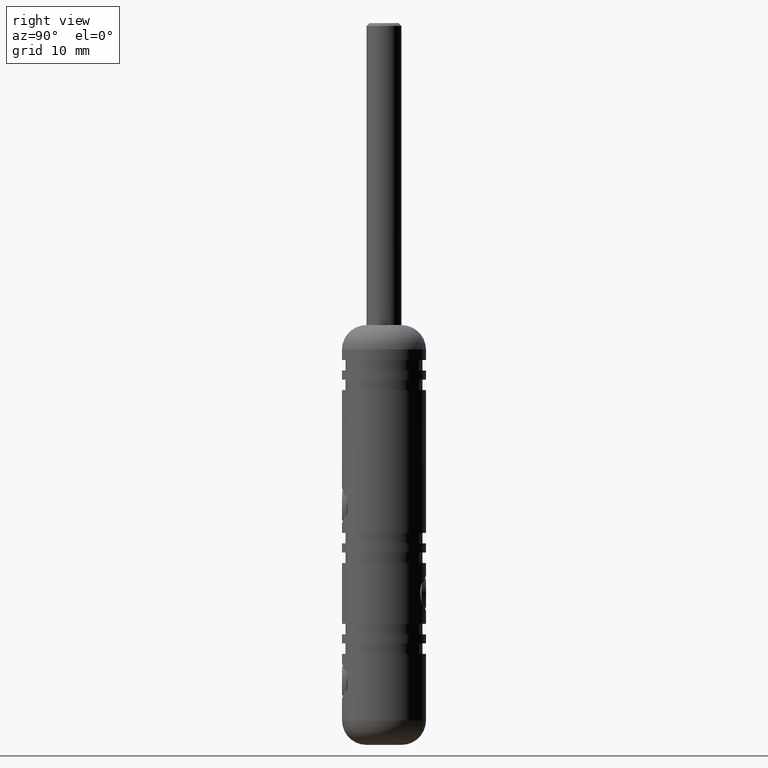
[diagram: clean part render]
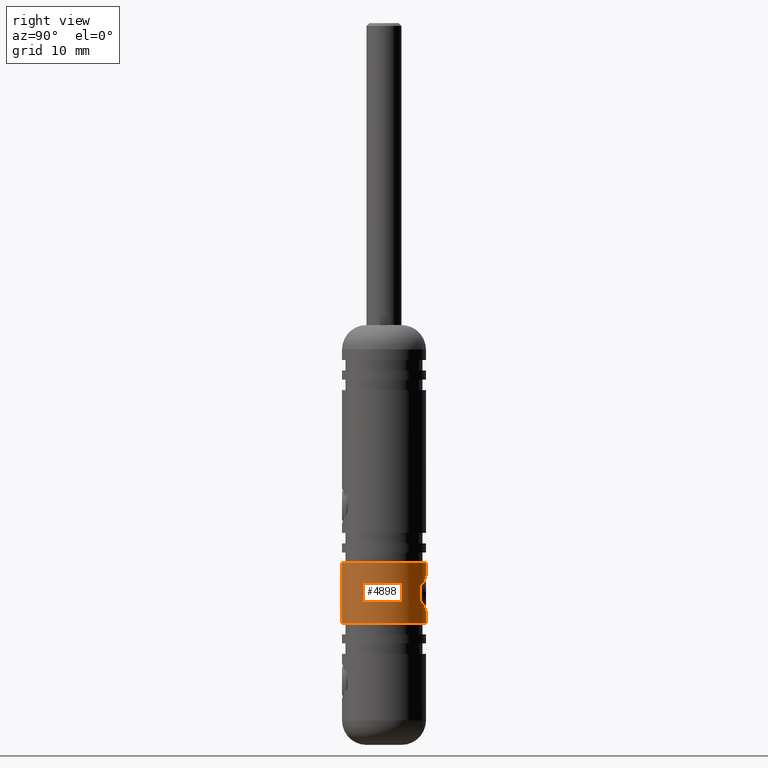
[diagram: same view with one face highlighted and labeled with its STEP entity id]
A machine part, right view. The second image highlights one B-rep face of the part: STEP entity #4898.
In plain terms, the highlighted cylindrical surface (partial cylindrical patch) has radius 6 mm, axis along (0, 0, 1).
Its self-contained STEP definition (entity closure, byte-faithful):
#24 = CIRCLE ( 'NONE', #6634, 5.999999999999980500 ) ;
#93 = CIRCLE ( 'NONE', #11725, 5.999999999999979600 ) ;
#397 = CARTESIAN_POINT ( 'NONE',  ( 7.347777944682092200E-016, 5.999999999999976900, -10.85000000000000100 ) ) ;
#455 = CARTESIAN_POINT ( 'NONE',  ( 0.8115992888655364500, 5.946860788343231600, -5.979642376573275800 ) ) ;
#515 = CARTESIAN_POINT ( 'NONE',  ( 2.166263312547636900, 5.596114381308978200, -9.608327122135955600 ) ) ;
#569 = DIRECTION ( 'NONE',  ( -0.0000000000000000000, 6.241551396031028600E-017, 1.000000000000000000 ) ) ;
#1262 = CARTESIAN_POINT ( 'NONE',  ( 0.0000000000000000000, 5.999999999999976000, -5.850000000000005000 ) ) ;
#1670 = CARTESIAN_POINT ( 'NONE',  ( 1.260060590211527400, 5.867820848286483800, -10.51528046352898600 ) ) ;
#1725 = CARTESIAN_POINT ( 'NONE',  ( 0.8121109664669670100, 5.946762593001415600, -10.72010000276761100 ) ) ;
#1778 = CARTESIAN_POINT ( 'NONE',  ( 0.3316893159624707000, 5.993028201139764200, -10.83339933881467900 ) ) ;
#1833 = CARTESIAN_POINT ( 'NONE',  ( 2.244635986508915200, 5.564731696078985700, -9.462763928491114000 ) ) ;
#2897 = CARTESIAN_POINT ( 'NONE',  ( 1.986351737220498200, 5.662472930091954700, -9.876594465348913900 ) ) ;
#3007 = CARTESIAN_POINT ( 'NONE',  ( 2.370252263024601000, 5.512398186896852800, -9.161503839860646500 ) ) ;
#3067 = CARTESIAN_POINT ( 'NONE',  ( 2.499958286588244100, 5.454375176628026600, -8.515426999768903800 ) ) ;
#3328 = VERTEX_POINT ( 'NONE', #8015 ) ;
#3695 = FACE_OUTER_BOUND ( 'NONE', #12815, .T. ) ;
#4228 = CARTESIAN_POINT ( 'NONE',  ( 2.483167037994901800, 5.462156378440682600, -8.683100656855362600 ) ) ;
#4392 = CARTESIAN_POINT ( 'NONE',  ( 1.259538159729436600, 5.867927242172487300, -6.184439642035616900 ) ) ;
#4598 = DIRECTION ( 'NONE',  ( -0.0000000000000000000, 6.241551396031028600E-017, 1.000000000000000000 ) ) ;
#4898 = ADVANCED_FACE ( 'NONE', ( #3695 ), #9460, .T. ) ;
#4956 = VERTEX_POINT ( 'NONE', #1262 ) ;
#5624 = CARTESIAN_POINT ( 'NONE',  ( 1.985776905186849000, 5.662680758676469100, -6.822596471327101700 ) ) ;
#5845 = VERTEX_POINT ( 'NONE', #14756 ) ;
#5997 = CARTESIAN_POINT ( 'NONE',  ( 0.0000000000000000000, -2.665142446105249500E-015, -12.70000000000000300 ) ) ;
#6246 = EDGE_CURVE ( 'NONE', #4956, #7862, #12820, .T. ) ;
#6249 = EDGE_CURVE ( 'NONE', #7206, #7862, #93, .T. ) ;
#6323 = DIRECTION ( 'NONE',  ( 0.0000000000000000000, -1.000000000000000000, 0.0000000000000000000 ) ) ;
#6468 = LINE ( 'NONE', #14337, #7054 ) ;
#6516 = CARTESIAN_POINT ( 'NONE',  ( 0.0000000000000000000, -5.999999999999983100, -12.70000000000000300 ) ) ;
#6558 = EDGE_CURVE ( 'NONE', #10032, #7206, #6468, .T. ) ;
#6634 = AXIS2_PLACEMENT_3D ( 'NONE', #5997, #16220, #9055 ) ;
#6652 = B_SPLINE_CURVE_WITH_KNOTS ( 'NONE', 3,
 ( #397, #6842, #1778, #14580, #1725, #8144, #1670, #6942, #9445, #10601, #2897, #515, #1833, #3007, #10655, #4228, #3067, #14521, #10550, #8045, #11891, #5624, #11999, #6890, #10711, #4392, #11944, #455, #13290, #7986, #15781, #8202 ),
 .UNSPECIFIED., .F., .F.,
 ( 4, 2, 2, 2, 2, 2, 2, 2, 2, 2, 2, 2, 2, 2, 2, 4 ),
 ( 0.007907415464232892700, 0.008401230926880311200, 0.008895046389527729700, 0.009388861852175150000, 0.009882677314822568500, 0.01037649277746998700, 0.01087030824011740700, 0.01136412370276482600, 0.01185793916541224400, 0.01284557009070707800, 0.01333938555335449300, 0.01383320101600191000, 0.01432701647864932600, 0.01482083194129674200, 0.01531464740394415800, 0.01580846286659157500 ),
 .UNSPECIFIED. ) ;
#6842 = CARTESIAN_POINT ( 'NONE',  ( 0.1646041220039581900, 5.999999999999977800, -10.84999999999999800 ) ) ;
#6890 = CARTESIAN_POINT ( 'NONE',  ( 1.654032730495418300, 5.768759283832320500, -6.468374034229552400 ) ) ;
#6942 = CARTESIAN_POINT ( 'NONE',  ( 1.528716671483799000, 5.803628135650771300, -10.33474620923483100 ) ) ;
#7054 = VECTOR ( 'NONE', #13110, 1000.000000000000000 ) ;
#7206 = VERTEX_POINT ( 'NONE', #16128 ) ;
#7575 = DIRECTION ( 'NONE',  ( -0.0000000000000000000, 6.241551396031028600E-017, 1.000000000000000000 ) ) ;
#7862 = VERTEX_POINT ( 'NONE', #13473 ) ;
#7986 = CARTESIAN_POINT ( 'NONE',  ( 0.3334989678857768800, 5.992895555958760700, -5.866922929660764100 ) ) ;
#8015 = CARTESIAN_POINT ( 'NONE',  ( 7.347777944682092200E-016, 5.999999999999976900, -10.85000000000000100 ) ) ;
#8045 = CARTESIAN_POINT ( 'NONE',  ( 2.244716869438427000, 5.564698557009159600, -7.237411570348672100 ) ) ;
#8099 = DIRECTION ( 'NONE',  ( 0.0000000000000000000, -1.000000000000000000, 0.0000000000000000000 ) ) ;
#8144 = CARTESIAN_POINT ( 'NONE',  ( 1.114788231091695200, 5.897521238554067400, -10.59369014010277400 ) ) ;
#8202 = CARTESIAN_POINT ( 'NONE',  ( 0.0000000000000000000, 5.999999999999976000, -5.850000000000005000 ) ) ;
#8305 = EDGE_CURVE ( 'NONE', #3328, #4956, #6652, .T. ) ;
#8805 = ORIENTED_EDGE ( 'NONE', *, *, #6558, .F. ) ;
#8915 = ORIENTED_EDGE ( 'NONE', *, *, #14590, .T. ) ;
#8963 = ORIENTED_EDGE ( 'NONE', *, *, #11334, .T. ) ;
#9055 = DIRECTION ( 'NONE',  ( 0.0000000000000000000, -1.000000000000000000, 0.0000000000000000000 ) ) ;
#9445 = CARTESIAN_POINT ( 'NONE',  ( 1.654382943241681900, 5.768663301305668500, -10.23134693150443800 ) ) ;
#9460 = CYLINDRICAL_SURFACE ( 'NONE', #15510, 5.999999999999979600 ) ;
#10004 = VECTOR ( 'NONE', #11947, 1000.000000000000000 ) ;
#10032 = VERTEX_POINT ( 'NONE', #6516 ) ;
#10550 = CARTESIAN_POINT ( 'NONE',  ( 2.433024516705508700, 5.486245265971603200, -7.689077120949958700 ) ) ;
#10601 = CARTESIAN_POINT ( 'NONE',  ( 1.884182109196806300, 5.697746658645195700, -10.00115322697588000 ) ) ;
#10655 = CARTESIAN_POINT ( 'NONE',  ( 2.418087471178594700, 5.491277066662519200, -9.005688621154098100 ) ) ;
#10711 = CARTESIAN_POINT ( 'NONE',  ( 1.527725331987267900, 5.803883338356229200, -6.364516847262150300 ) ) ;
#11334 = EDGE_CURVE ( 'NONE', #5845, #3328, #11401, .T. ) ;
#11401 = LINE ( 'NONE', #12212, #15852 ) ;
#11725 = AXIS2_PLACEMENT_3D ( 'NONE', #13406, #569, #8099 ) ;
#11891 = CARTESIAN_POINT ( 'NONE',  ( 2.166378616493327900, 5.596076034317141200, -7.091796857985031000 ) ) ;
#11944 = CARTESIAN_POINT ( 'NONE',  ( 1.116433988101045200, 5.897238488634666700, -6.107041280175437200 ) ) ;
#11947 = DIRECTION ( 'NONE',  ( -0.0000000000000000000, 6.241551396031028600E-017, 1.000000000000000000 ) ) ;
#11999 = CARTESIAN_POINT ( 'NONE',  ( 1.883431010051971300, 5.697990486015776000, -6.698022948408085300 ) ) ;
#12212 = CARTESIAN_POINT ( 'NONE',  ( 7.347880794884094100E-016, 5.999999999999979600, 30.00000000000000000 ) ) ;
#12416 = ORIENTED_EDGE ( 'NONE', *, *, #8305, .T. ) ;
#12601 = CARTESIAN_POINT ( 'NONE',  ( 0.0000000000000000000, 0.0000000000000000000, 30.00000000000000000 ) ) ;
#12815 = EDGE_LOOP ( 'NONE', ( #8915, #8963, #12416, #14249, #12889, #8805 ) ) ;
#12820 = LINE ( 'NONE', #14355, #10004 ) ;
#12889 = ORIENTED_EDGE ( 'NONE', *, *, #6249, .F. ) ;
#13110 = DIRECTION ( 'NONE',  ( -0.0000000000000000000, 6.241551396031028600E-017, 1.000000000000000000 ) ) ;
#13290 = CARTESIAN_POINT ( 'NONE',  ( 0.6550088422699808000, 5.966320652023262600, -5.931765785666430100 ) ) ;
#13406 = CARTESIAN_POINT ( 'NONE',  ( 0.0000000000000000000, -2.122127474650550100E-015, -4.000000000000003600 ) ) ;
#13473 = CARTESIAN_POINT ( 'NONE',  ( 7.347880794884094100E-016, 5.999999999999977800, -4.000000000000003600 ) ) ;
#14249 = ORIENTED_EDGE ( 'NONE', *, *, #6246, .T. ) ;
#14337 = CARTESIAN_POINT ( 'NONE',  ( 0.0000000000000000000, -5.999999999999979600, 30.00000000000000000 ) ) ;
#14355 = CARTESIAN_POINT ( 'NONE',  ( 7.347880794884094100E-016, 5.999999999999979600, 30.00000000000000000 ) ) ;
#14521 = CARTESIAN_POINT ( 'NONE',  ( 2.500083187475624400, 5.454317928402368000, -8.021040787578757000 ) ) ;
#14580 = CARTESIAN_POINT ( 'NONE',  ( 0.6555787703010425000, 5.966290413473915400, -10.76816181308849000 ) ) ;
#14590 = EDGE_CURVE ( 'NONE', #10032, #5845, #24, .T. ) ;
#14756 = CARTESIAN_POINT ( 'NONE',  ( 7.347880794884094100E-016, 5.999999999999977800, -12.70000000000000300 ) ) ;
#15510 = AXIS2_PLACEMENT_3D ( 'NONE', #12601, #7575, #6323 ) ;
#15781 = CARTESIAN_POINT ( 'NONE',  ( 0.1671054223428512500, 5.999999999999974200, -5.850000000000005000 ) ) ;
#15852 = VECTOR ( 'NONE', #4598, 1000.000000000000000 ) ;
#16128 = CARTESIAN_POINT ( 'NONE',  ( 0.0000000000000000000, -5.999999999999981300, -4.000000000000003600 ) ) ;
#16220 = DIRECTION ( 'NONE',  ( -0.0000000000000000000, 6.241551396031028600E-017, 1.000000000000000000 ) ) ;